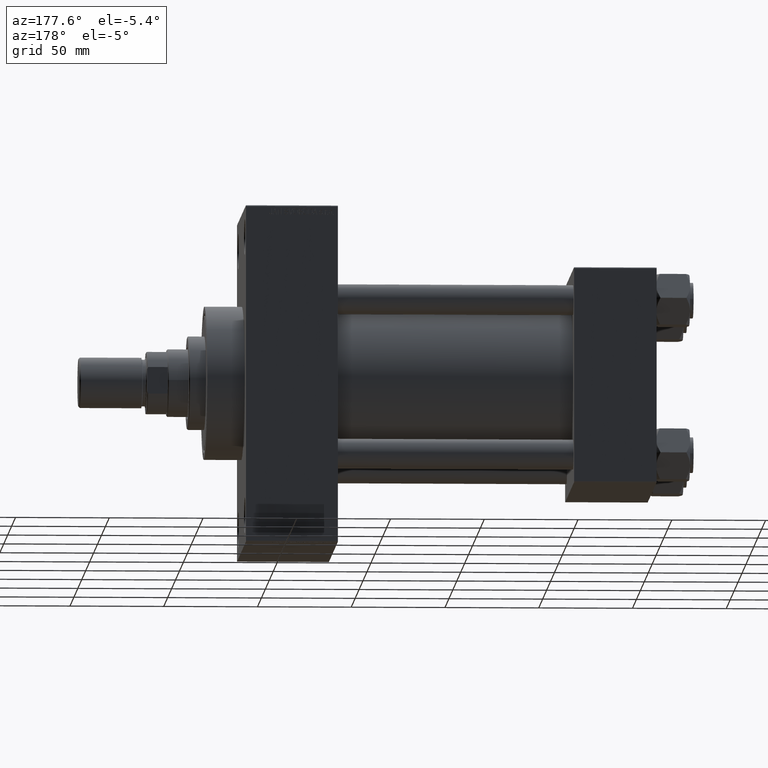
[diagram: clean part render]
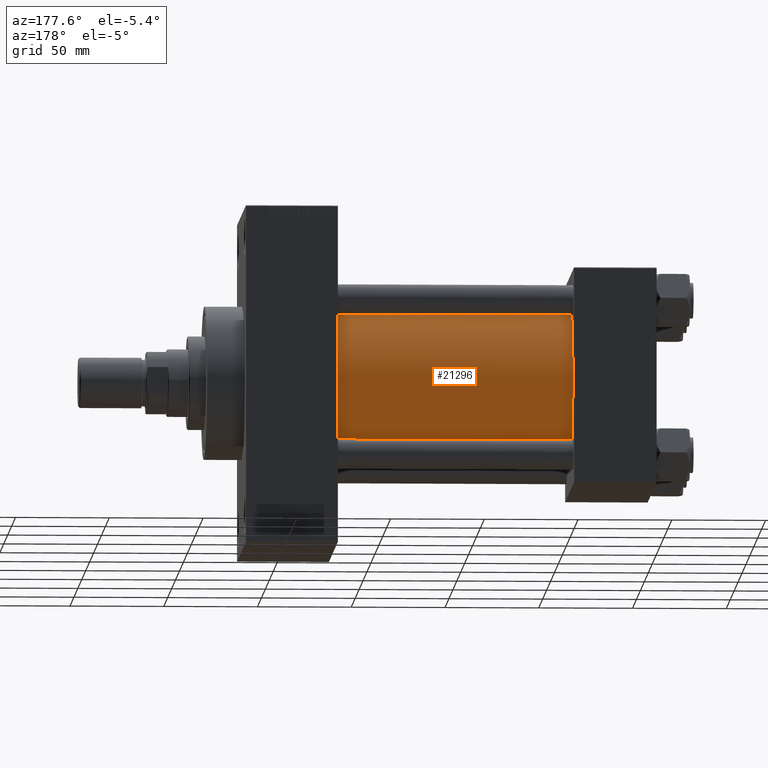
[diagram: same view with one face highlighted and labeled with its STEP entity id]
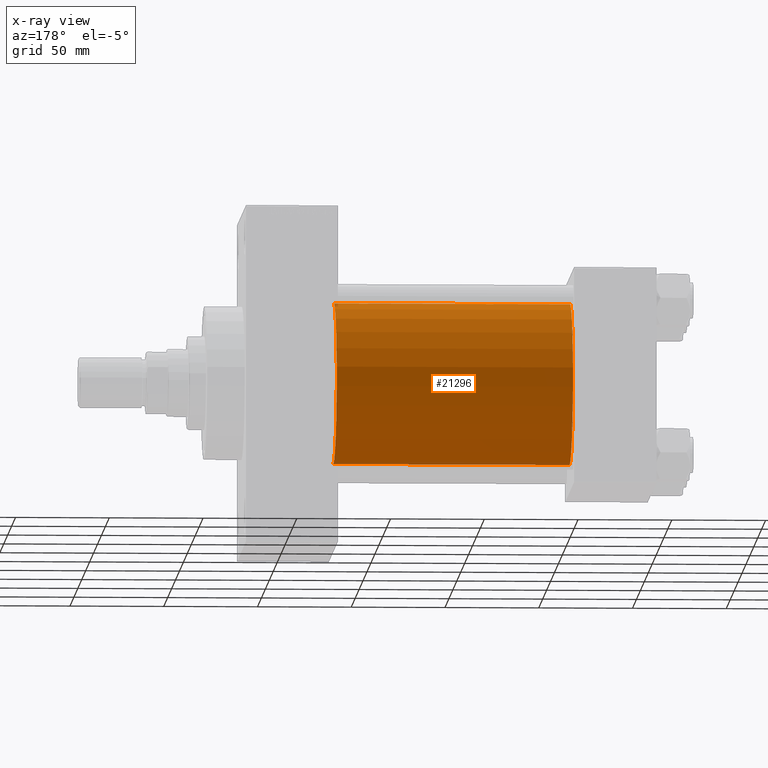
[diagram: x-ray of the same camera — body ghosted, the highlighted face saturated]
A machine part, auxiliary view. The second image highlights one B-rep face of the part: STEP entity #21296.
The next image is the same camera in x-ray: the body ghosted, the highlighted face saturated — about 2% of this face is hidden behind the body in this view.
In plain terms, the highlighted cylindrical surface (partial cylindrical patch) has radius 43 mm, axis along (-1, -0, -0).
Its self-contained STEP definition (entity closure, byte-faithful):
#3451 = AXIS2_PLACEMENT_3D ( 'NONE', #32890, #47788, #14294 ) ;
#8270 = DIRECTION ( 'NONE',  ( -1.000000000000000000, -0.000000000000000000, -0.000000000000000000 ) ) ;
#9982 = EDGE_CURVE ( 'NONE', #35271, #45502, #26845, .T. ) ;
#11703 = CARTESIAN_POINT ( 'NONE',  ( 169.9999999999999716, -2.602085213965210642E-15, 43.00000000000000000 ) ) ;
#13166 = EDGE_LOOP ( 'NONE', ( #32597, #43025, #23789, #13423 ) ) ;
#13300 = VECTOR ( 'NONE', #8270, 1000.000000000000000 ) ;
#13423 = ORIENTED_EDGE ( 'NONE', *, *, #9982, .F. ) ;
#13729 = DIRECTION ( 'NONE',  ( 1.000000000000000000, -0.000000000000000000, 0.000000000000000000 ) ) ;
#14294 = DIRECTION ( 'NONE',  ( 0.000000000000000000, 0.000000000000000000, 1.000000000000000000 ) ) ;
#16307 = VERTEX_POINT ( 'NONE', #37818 ) ;
#16929 = DIRECTION ( 'NONE',  ( 1.000000000000000000, 0.000000000000000000, 0.000000000000000000 ) ) ;
#16932 = VECTOR ( 'NONE', #17611, 1000.000000000000000 ) ;
#17030 = CARTESIAN_POINT ( 'NONE',  ( 43.99999999999998579, 2.663896022368408223E-15, -43.00000000000000000 ) ) ;
#17611 = DIRECTION ( 'NONE',  ( -1.000000000000000000, -0.000000000000000000, -0.000000000000000000 ) ) ;
#17970 = CYLINDRICAL_SURFACE ( 'NONE', #3451, 43.00000000000000000 ) ;
#18203 = CARTESIAN_POINT ( 'NONE',  ( 43.99999999999998579, -2.602085213965210642E-15, 43.00000000000000000 ) ) ;
#18861 = AXIS2_PLACEMENT_3D ( 'NONE', #20341, #16929, #20096 ) ;
#20096 = DIRECTION ( 'NONE',  ( 0.000000000000000000, 0.000000000000000000, -1.000000000000000000 ) ) ;
#20341 = CARTESIAN_POINT ( 'NONE',  ( 169.9999999999999716, -2.602085213965210642E-15, 0.000000000000000000 ) ) ;
#21296 = ADVANCED_FACE ( 'NONE', ( #39731 ), #17970, .T. ) ;
#23789 = ORIENTED_EDGE ( 'NONE', *, *, #38144, .T. ) ;
#25059 = EDGE_CURVE ( 'NONE', #16307, #43016, #47182, .T. ) ;
#25224 = DIRECTION ( 'NONE',  ( 0.000000000000000000, 0.000000000000000000, 1.000000000000000000 ) ) ;
#26845 = LINE ( 'NONE', #37617, #13300 ) ;
#29346 = CARTESIAN_POINT ( 'NONE',  ( 169.9999999999999716, 2.663896022368408223E-15, -43.00000000000000000 ) ) ;
#31601 = CARTESIAN_POINT ( 'NONE',  ( 43.99999999999998579, -2.602085213965210642E-15, 0.000000000000000000 ) ) ;
#32597 = ORIENTED_EDGE ( 'NONE', *, *, #37614, .F. ) ;
#32890 = CARTESIAN_POINT ( 'NONE',  ( 169.9999999999999716, -2.602085213965210642E-15, 0.000000000000000000 ) ) ;
#35271 = VERTEX_POINT ( 'NONE', #11703 ) ;
#37614 = EDGE_CURVE ( 'NONE', #16307, #35271, #44618, .T. ) ;
#37617 = CARTESIAN_POINT ( 'NONE',  ( 169.9999999999999716, -2.602085213965210642E-15, 43.00000000000000000 ) ) ;
#37818 = CARTESIAN_POINT ( 'NONE',  ( 169.9999999999999716, 2.663896022368408223E-15, -43.00000000000000000 ) ) ;
#38144 = EDGE_CURVE ( 'NONE', #43016, #45502, #39169, .T. ) ;
#39169 = CIRCLE ( 'NONE', #43080, 43.00000000000000000 ) ;
#39731 = FACE_OUTER_BOUND ( 'NONE', #13166, .T. ) ;
#43016 = VERTEX_POINT ( 'NONE', #17030 ) ;
#43025 = ORIENTED_EDGE ( 'NONE', *, *, #25059, .T. ) ;
#43080 = AXIS2_PLACEMENT_3D ( 'NONE', #31601, #13729, #25224 ) ;
#44618 = CIRCLE ( 'NONE', #18861, 43.00000000000000000 ) ;
#45502 = VERTEX_POINT ( 'NONE', #18203 ) ;
#47182 = LINE ( 'NONE', #29346, #16932 ) ;
#47788 = DIRECTION ( 'NONE',  ( -1.000000000000000000, -0.000000000000000000, -0.000000000000000000 ) ) ;